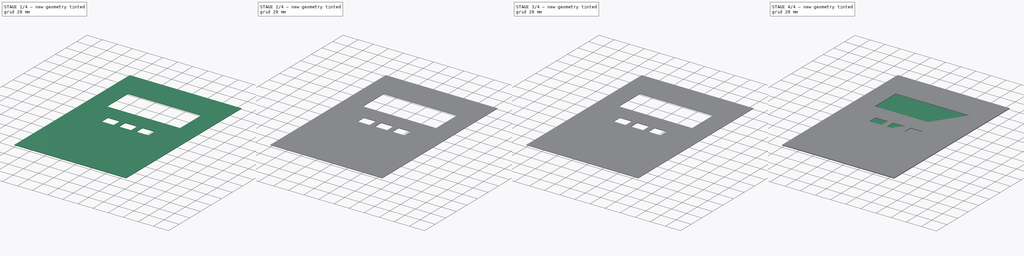
[diagram: build sequence overview — one tinted view per stage of 4, left to right]
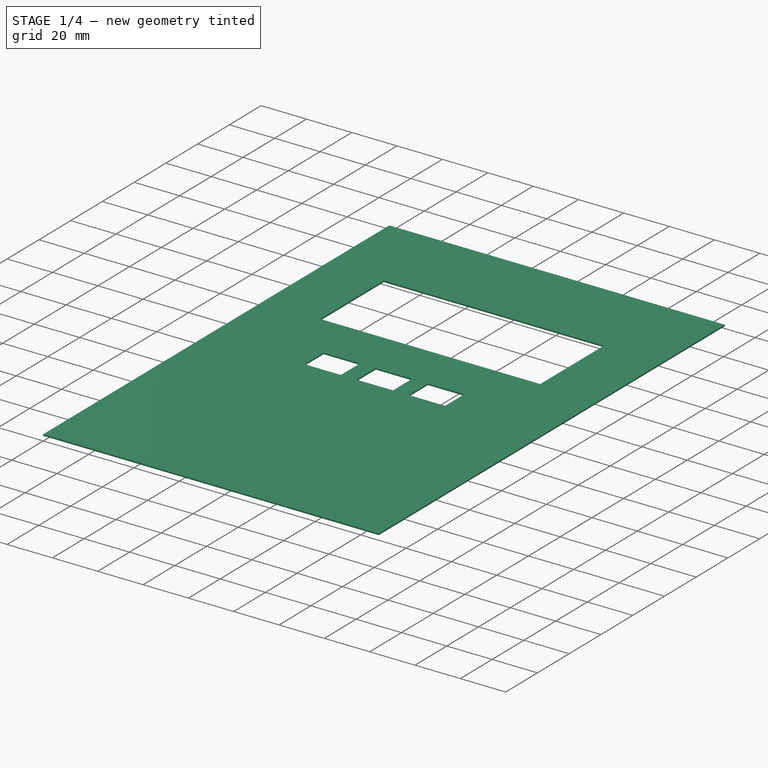
[diagram: stage 1 of 4 — iso view after this stage's code; geometry added in this stage tinted green]
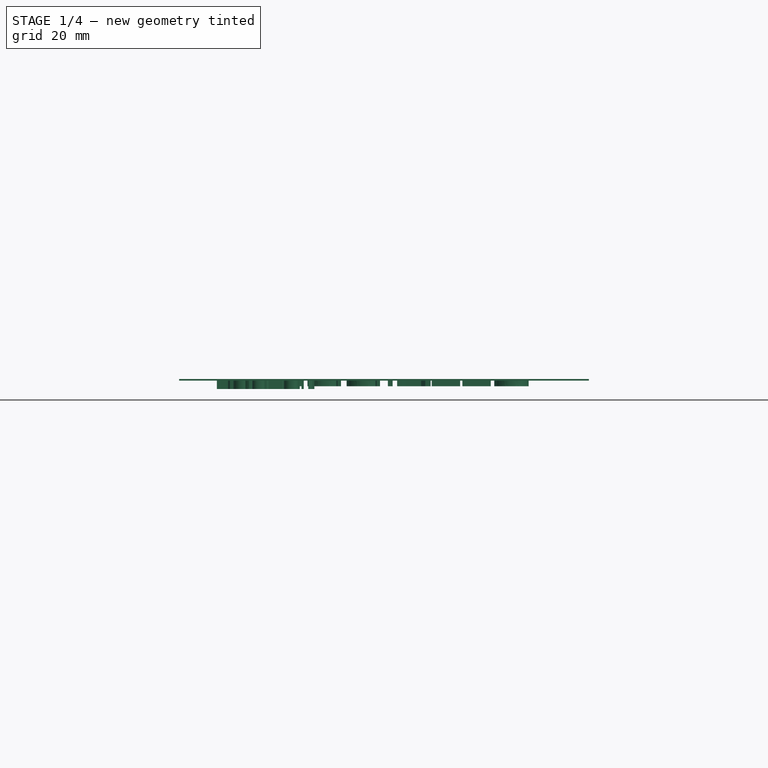
[diagram: stage 1 of 4 — front view after this stage's code; geometry added in this stage tinted green]
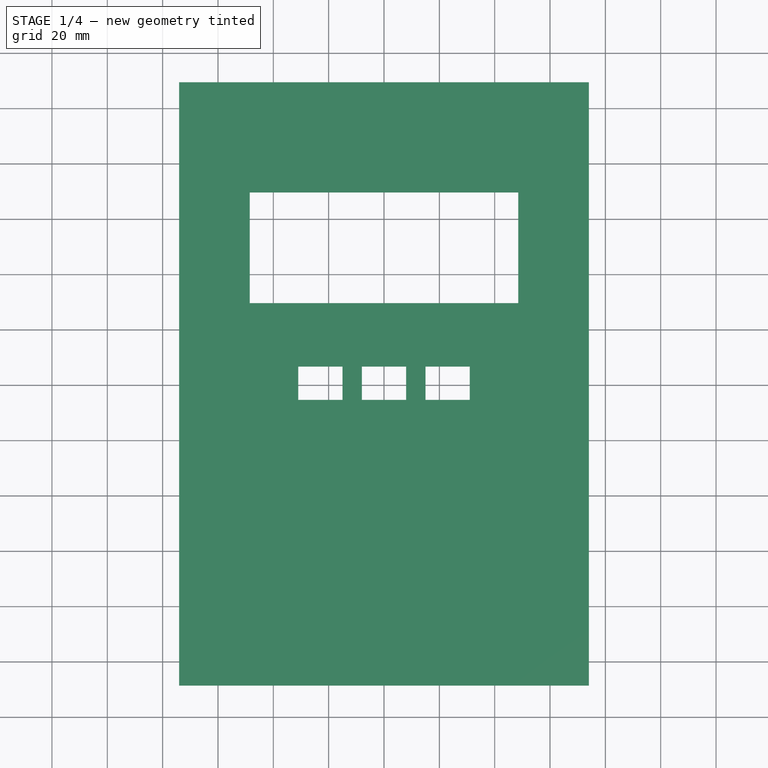
[diagram: stage 1 of 4 — top view after this stage's code; geometry added in this stage tinted green]
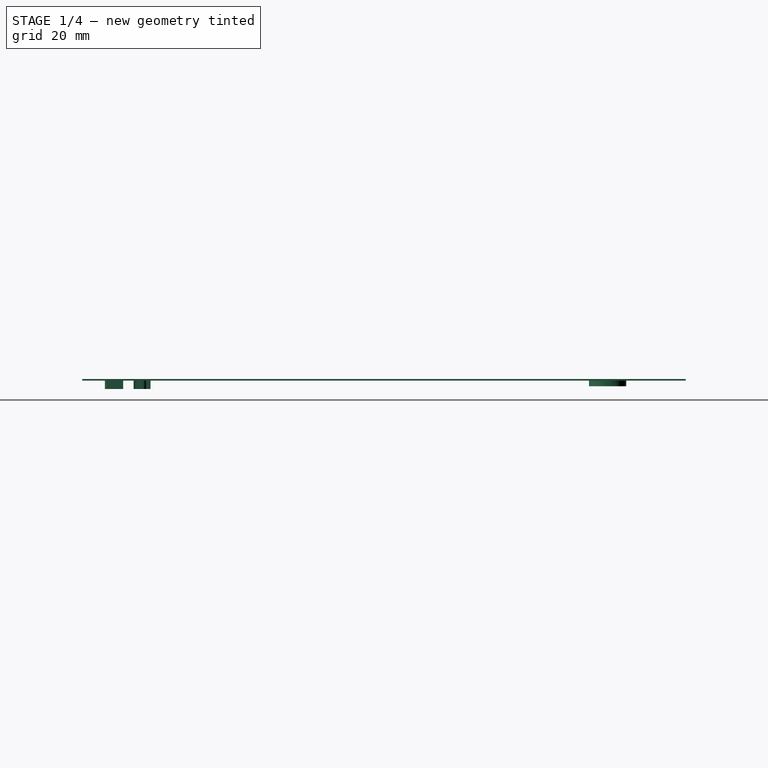
[diagram: stage 1 of 4 — right view after this stage's code; geometry added in this stage tinted green]
FCSTD DOCUMENT  (FreeCAD 1.0R39285 (Git))
Label: mascara contr pisc
License: All rights reserved
LicenseURL: https://en.wikipedia.org/wiki/All_rights_reserved
objects: PartDesign::Pad×13, Part::Part2DObjectPython×10, Sketcher::SketchObject×3, PartDesign::Body×2, Part::Box×1, PartDesign::ShapeBinder×1
note: 59 computed .brp shape members not serialized (recipe doc carries the construction recipe); baked Part::Feature solids carry a one-line shape summary decoded from their .brp

FEATURE [Part::Part2DObjectPython] ShapeString  # Draft 2D object (typed FeaturePython)
  FontFile = <userpath>/Windows11-21H2-Fonts/micross.ttf
  Fuse = false
  Justification = 6
  JustificationReference = 0
  KeepLeftMargin = false
  MakeFace = true
  ObliqueAngle = 0
  Placement = pos=(-52.19,74.71,0) rot=(0,0,1;0rad)
  ScaleToSize = true
  Size = 13
  String = FOGGIATTO
  Tracking = 0
FEATURE [Part::Part2DObjectPython] ShapeString001  # Draft 2D object (typed FeaturePython)
  FontFile = <userpath>/Windows11-21H2-Fonts/arial.ttf
  Fuse = false
  Justification = 6
  JustificationReference = 0
  KeepLeftMargin = false
  MakeFace = true
  ObliqueAngle = 0
  Placement = pos=(-56.02,-90,0) rot=(0,0,1;0rad)
  ScaleToSize = true
  Size = 6
  String = Bomba
  Tracking = 0
FEATURE [Part::Part2DObjectPython] ShapeString002  # Draft 2D object (typed FeaturePython)
  FontFile = <userpath>/Windows11-21H2-Fonts/arial.ttf
  Fuse = false
  Justification = 6
  JustificationReference = 0
  KeepLeftMargin = false
  MakeFace = true
  ObliqueAngle = 0
  Placement = pos=(-60.38,-100,0) rot=(0,0,1;0rad)
  ScaleToSize = true
  Size = 6
  String = AQUEC.1
  Tracking = 0
FEATURE [Part::Part2DObjectPython] ShapeString003  # Draft 2D object (typed FeaturePython)
  FontFile = <userpath>/Windows11-21H2-Fonts/arial.ttf
  Fuse = false
  Justification = 6
  JustificationReference = 0
  KeepLeftMargin = false
  MakeFace = true
  ObliqueAngle = 0
  Placement = pos=(-9.02,-90,0) rot=(0,0,1;0rad)
  ScaleToSize = true
  Size = 6
  String = Bomba
  Tracking = 0
FEATURE [Part::Part2DObjectPython] ShapeString004  # Draft 2D object (typed FeaturePython)
  FontFile = <userpath>/Windows11-21H2-Fonts/arial.ttf
  Fuse = false
  Justification = 6
  JustificationReference = 0
  KeepLeftMargin = false
  MakeFace = true
  ObliqueAngle = 0
  Placement = pos=(31.02,-90,0) rot=(0,0,1;0rad)
  ScaleToSize = true
  Size = 6
  String = Bomba
  Tracking = 0
FEATURE [Part::Part2DObjectPython] ShapeString005  # Draft 2D object (typed FeaturePython)
  FontFile = <userpath>/Windows11-21H2-Fonts/arial.ttf
  Fuse = false
  Justification = 6
  JustificationReference = 0
  KeepLeftMargin = false
  MakeFace = true
  ObliqueAngle = 0
  Placement = pos=(-15.38,-100,0) rot=(0,0,1;0rad)
  ScaleToSize = true
  Size = 6
  String = AQUEC.2
  Tracking = 0
FEATURE [Part::Part2DObjectPython] ShapeString006  # Draft 2D object (typed FeaturePython)
  FontFile = <userpath>/Windows11-21H2-Fonts/arial.ttf
  Fuse = false
  Justification = 6
  JustificationReference = 0
  KeepLeftMargin = false
  MakeFace = true
  ObliqueAngle = 0
  Placement = pos=(30.62,-100,0) rot=(0,0,1;0rad)
  ScaleToSize = true
  Size = 6
  String = FILTRO
  Tracking = 0
FEATURE [Part::Part2DObjectPython] ShapeString007  # Draft 2D object (typed FeaturePython)
  FontFile = <userpath>/Windows11-21H2-Fonts/ariali.ttf
  Fuse = false
  Justification = 6
  JustificationReference = 0
  KeepLeftMargin = false
  MakeFace = true
  ObliqueAngle = 0
  Placement = pos=(53.07,74.7,0) rot=(0,0,1;0rad)
  ScaleToSize = true
  Size = 4
  String = CP01
  Tracking = 0
FEATURE [Sketcher::SketchObject] Sketch001
  ArcFitTolerance = 1e-06
  AttachmentSupport = -> [XY_Plane001]
  FullyConstrained = false
  MakeInternals = false
  MapMode = 5
  sketch-geometry (20):
    g0: LineSegment StartX=-74.0446 StartY=109.432 StartZ=0 EndX=-74.0446 EndY=-108.66 EndZ=0
    g1: LineSegment StartX=-74.0446 StartY=-108.66 StartZ=0 EndX=74.0446 EndY=-108.66 EndZ=0
    g2: LineSegment StartX=74.0446 StartY=-108.66 StartZ=0 EndX=74.0446 EndY=109.432 EndZ=0
    g3: LineSegment StartX=74.0446 StartY=109.432 StartZ=0 EndX=-74.0446 EndY=109.432 EndZ=0
    g4: LineSegment StartX=-48.5 StartY=69.5809 StartZ=0 EndX=-48.5 EndY=29.5809 EndZ=0
    g5: LineSegment StartX=-48.5 StartY=29.5809 StartZ=0 EndX=48.5 EndY=29.5809 EndZ=0
    g6: LineSegment StartX=48.5 StartY=29.5809 StartZ=0 EndX=48.5 EndY=69.5809 EndZ=0
    g7: LineSegment StartX=48.5 StartY=69.5809 StartZ=0 EndX=-48.5 EndY=69.5809 EndZ=0
    g8: LineSegment StartX=-31 StartY=6.63501 StartZ=0 EndX=-31 EndY=-5.36499 EndZ=0
    g9: LineSegment StartX=-31 StartY=-5.36499 StartZ=0 EndX=-15 EndY=-5.36499 EndZ=0
    g10: LineSegment StartX=-15 StartY=-5.36499 StartZ=0 EndX=-15 EndY=6.63501 EndZ=0
    g11: LineSegment StartX=-15 StartY=6.63501 StartZ=0 EndX=-31 EndY=6.63501 EndZ=0
    g12: LineSegment StartX=-8 StartY=6.63501 StartZ=0 EndX=-8 EndY=-5.36499 EndZ=0
    g13: LineSegment StartX=-8 StartY=-5.36499 StartZ=0 EndX=8 EndY=-5.36499 EndZ=0
    g14: LineSegment StartX=8 StartY=-5.36499 StartZ=0 EndX=8 EndY=6.63501 EndZ=0
    g15: LineSegment StartX=8 StartY=6.63501 StartZ=0 EndX=-8 EndY=6.63501 EndZ=0
    g16: LineSegment StartX=15 StartY=6.63501 StartZ=0 EndX=15 EndY=-5.36499 EndZ=0
    g17: LineSegment StartX=15 StartY=-5.36499 StartZ=0 EndX=31 EndY=-5.36499 EndZ=0
    g18: LineSegment StartX=31 StartY=-5.36499 StartZ=0 EndX=31 EndY=6.63501 EndZ=0
    g19: LineSegment StartX=31 StartY=6.63501 StartZ=0 EndX=15 EndY=6.63501 EndZ=0
  constraints (51):
    c: Coincident(g0,g1)
    c: Coincident(g1,g2)
    c: Coincident(g2,g3)
    c: Coincident(g3,g0)
    c: Vertical(g0)
    c: Vertical(g2)
    c: Horizontal(g1)
    c: Coincident(g4,g5)
    c: Coincident(g5,g6)
    c: Coincident(g6,g7)
    c: Coincident(g7,g4)
    c: Vertical(g4)
    c: Vertical(g6)
    c: Horizontal(g7)
    c: Coincident(g8,g9)
    c: Coincident(g9,g10)
    c: Coincident(g10,g11)
    c: Coincident(g11,g8)
    c: Vertical(g8)
    c: Vertical(g10)
    c: Horizontal(g9)
    c: Horizontal(g11)
    c: Coincident(g12,g13)
    c: Coincident(g13,g14)
    c: Coincident(g14,g15)
    c: Coincident(g15,g12)
    c: Vertical(g12)
    c: Vertical(g14)
    c: Horizontal(g13)
    c: Coincident(g16,g17)
    c: Coincident(g17,g18)
    c: Coincident(g18,g19)
    c: Coincident(g19,g16)
    c: Vertical(g16)
    c: Vertical(g18)
    c: Horizontal(g17)
    c: Horizontal(g19)
    c: Equal(g15,g11)
    c: Equal(g11,g19)
    c: Equal(g14,g18)
    c: Equal(g18,g10)
    c: Symmetric(g14,g12,g-2)
    c: Symmetric(g16,g10,g-2)
    c: DistanceY(g16,g14) = 0
    c: DistanceX(g14,g16) = 7
    c: DistanceX(g19,g19) = 16
    c: DistanceY(g18,g18) = 12
    c: DistanceY(g4,g4) = 40
    c: DistanceX(g5,g5) = 97
    c: Symmetric(g5,g4,g-2)
    c: Symmetric(g0,g2,g-2)
FEATURE [PartDesign::Pad] Pad001
  Direction = (0,0,1)
  Length = 0.6
  Length2 = 10
  Profile = -> Sketch001
  ReferenceAxis = -> Sketch001 [N_Axis]
  Refine = true
  Suppressed = false
  Type = 0
FEATURE [PartDesign::Pad] Pad002
  BaseFeature = -> Pad001
  Direction = (0,0,1)
  Length = 2
  Length2 = 10
  Profile = -> ShapeString
  ReferenceAxis = -> ShapeString [N_Axis]
  Refine = true
  Reversed = true
  Suppressed = false
  Type = 0
FEATURE [PartDesign::Pad] Pad003
  BaseFeature = -> Pad002
  Direction = (0,0,1)
  Length = 3
  Length2 = 10
  Profile = -> ShapeString001
  ReferenceAxis = -> ShapeString001 [N_Axis]
  Refine = true
  Reversed = true
  Suppressed = false
  Type = 0
FEATURE [PartDesign::Pad] Pad004
  BaseFeature = -> Pad003
  Direction = (0,0,1)
  Length = 3
  Length2 = 10
  Profile = -> ShapeString002
  ReferenceAxis = -> ShapeString002 [N_Axis]
  Refine = true
  Reversed = true
  Suppressed = false
  Type = 0
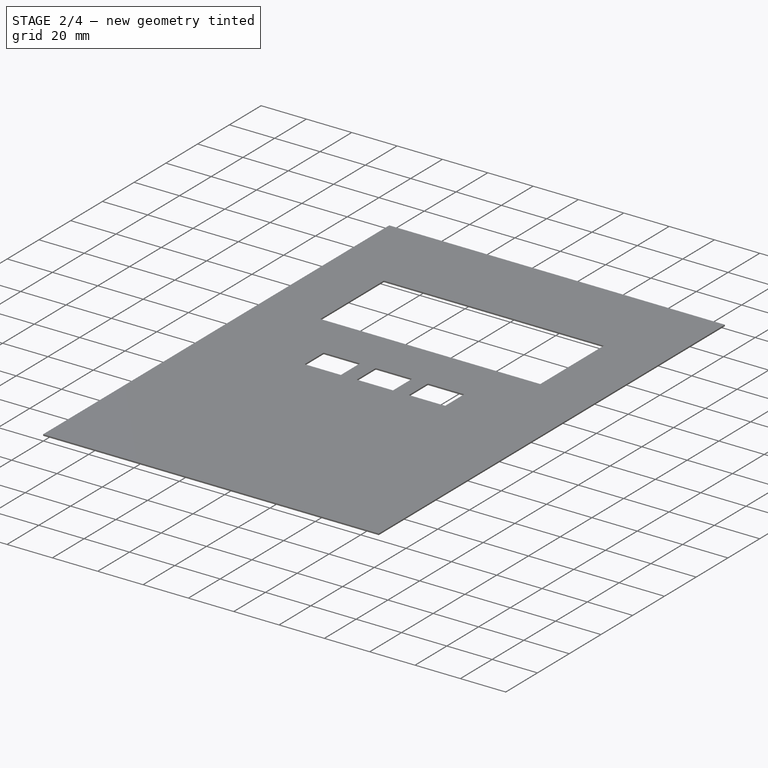
[diagram: stage 2 of 4 — iso view after this stage's code; geometry added in this stage tinted green]
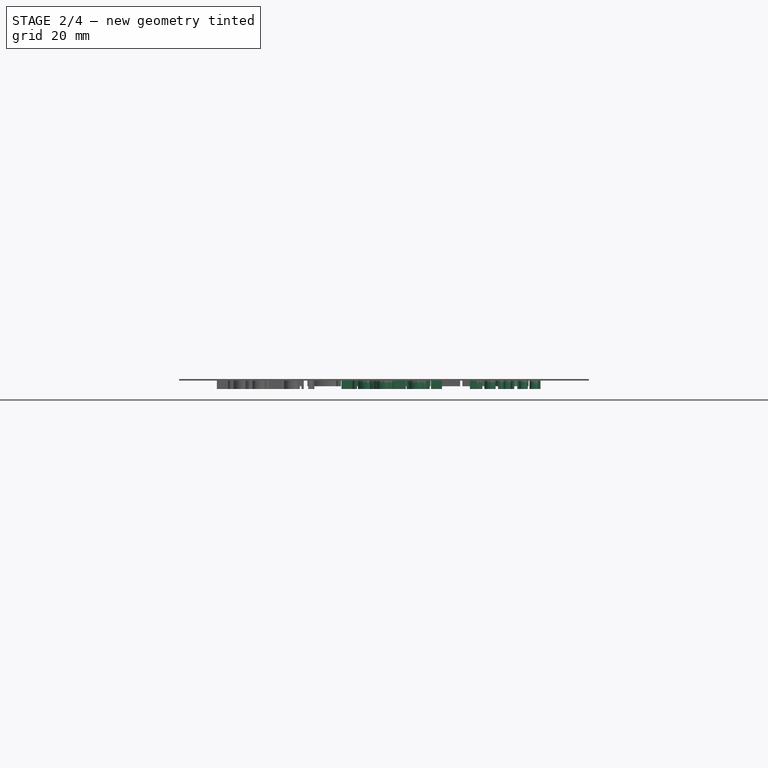
[diagram: stage 2 of 4 — front view after this stage's code; geometry added in this stage tinted green]
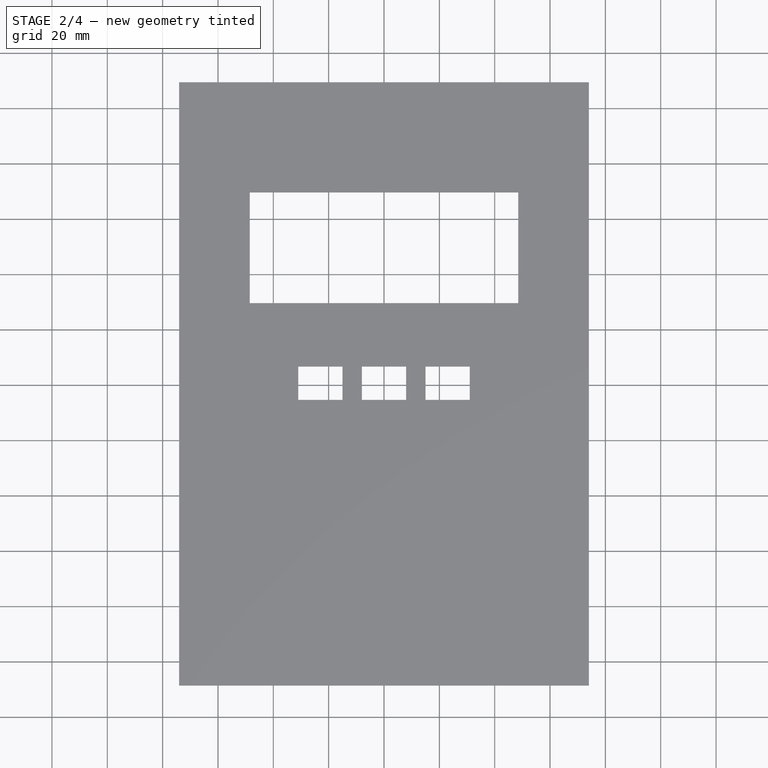
[diagram: stage 2 of 4 — top view after this stage's code; geometry added in this stage tinted green]
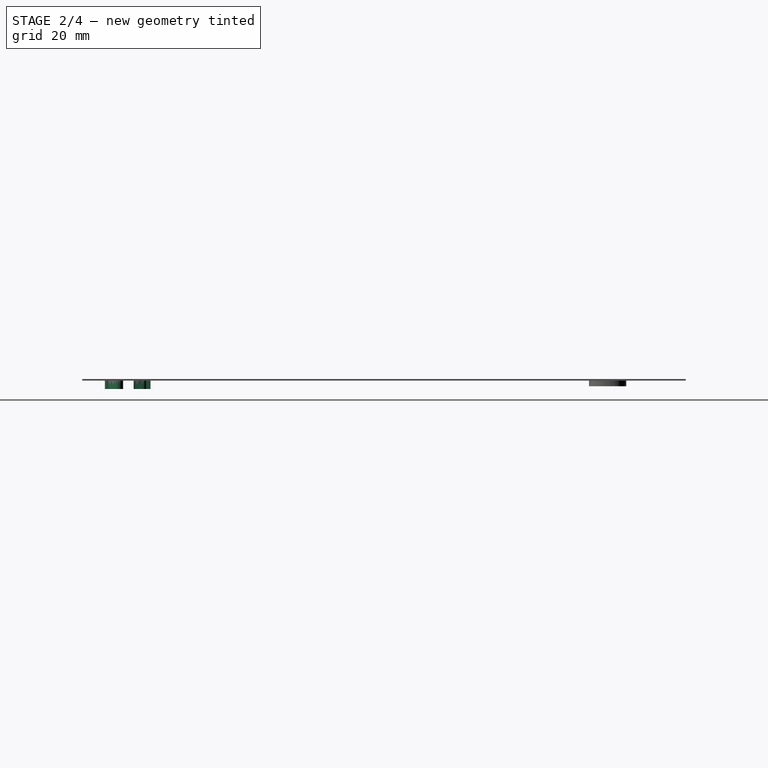
[diagram: stage 2 of 4 — right view after this stage's code; geometry added in this stage tinted green]
FEATURE [PartDesign::Pad] Pad005
  BaseFeature = -> Pad004
  Direction = (0,0,1)
  Length = 3
  Length2 = 10
  Profile = -> ShapeString003
  ReferenceAxis = -> ShapeString003 [N_Axis]
  Refine = true
  Reversed = true
  Suppressed = false
  Type = 0
FEATURE [PartDesign::Pad] Pad006
  BaseFeature = -> Pad005
  Direction = (0,0,1)
  Length = 3
  Length2 = 10
  Profile = -> ShapeString004
  ReferenceAxis = -> ShapeString004 [N_Axis]
  Refine = true
  Reversed = true
  Suppressed = false
  Type = 0
FEATURE [PartDesign::Pad] Pad007
  BaseFeature = -> Pad006
  Direction = (0,0,1)
  Length = 3
  Length2 = 10
  Profile = -> ShapeString005
  ReferenceAxis = -> ShapeString005 [N_Axis]
  Refine = true
  Reversed = true
  Suppressed = false
  Type = 0
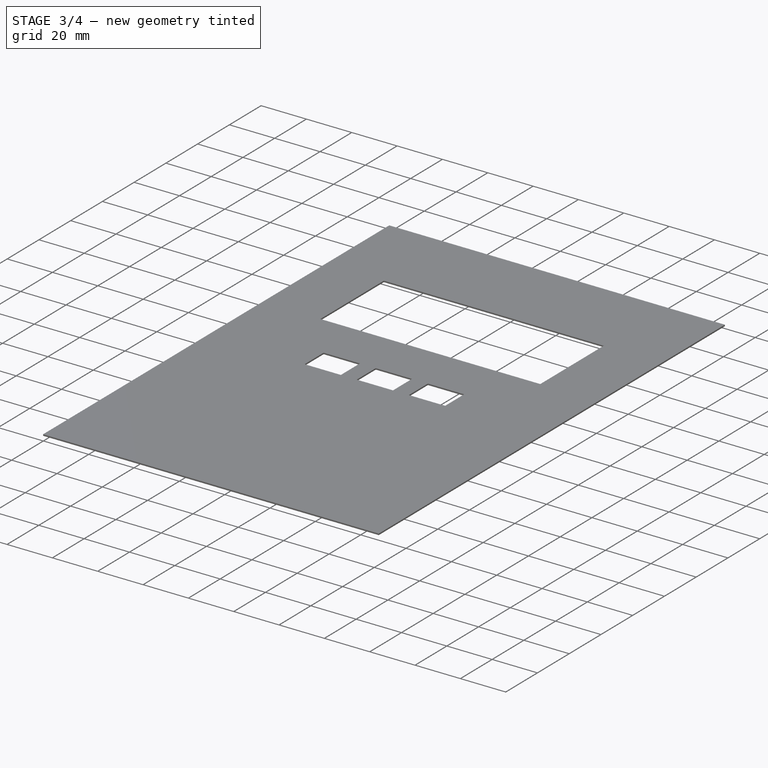
[diagram: stage 3 of 4 — iso view after this stage's code; geometry added in this stage tinted green]
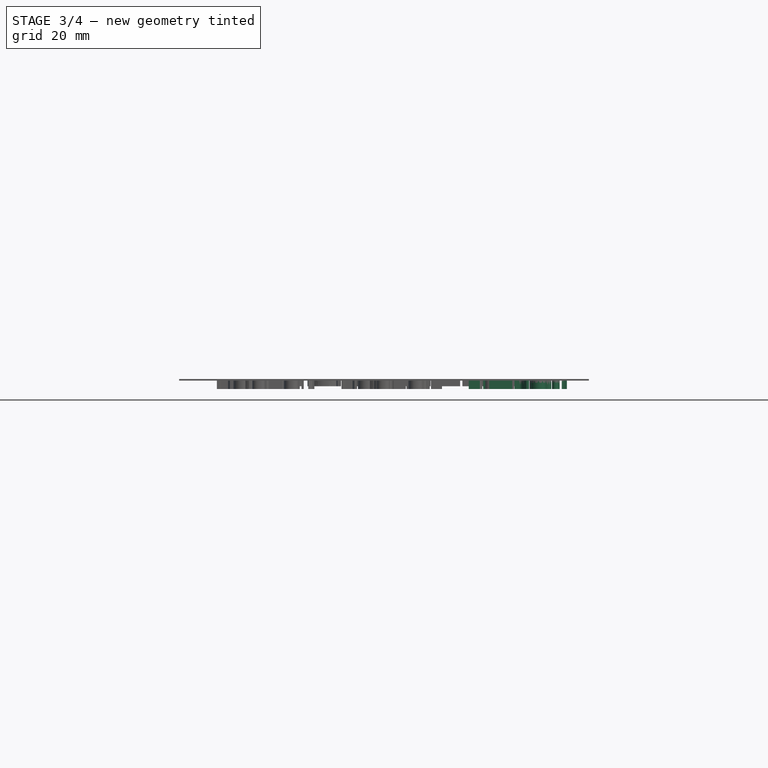
[diagram: stage 3 of 4 — front view after this stage's code; geometry added in this stage tinted green]
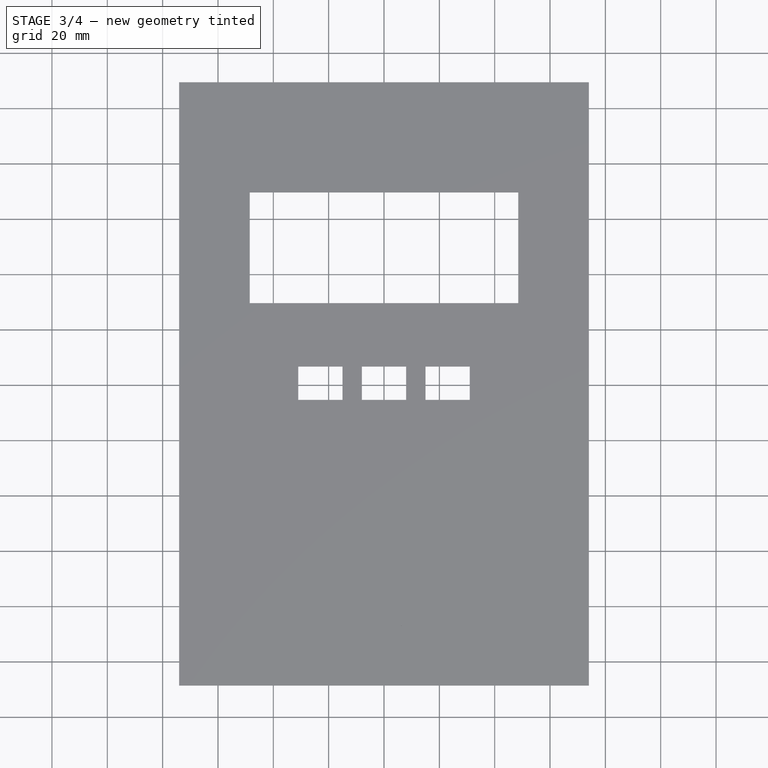
[diagram: stage 3 of 4 — top view after this stage's code; geometry added in this stage tinted green]
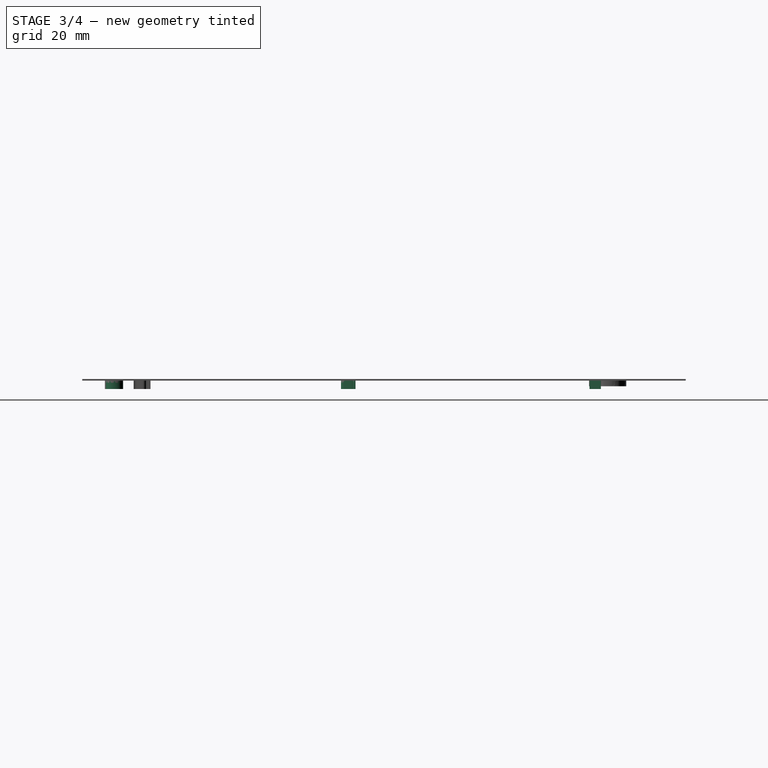
[diagram: stage 3 of 4 — right view after this stage's code; geometry added in this stage tinted green]
FEATURE [PartDesign::Pad] Pad008
  BaseFeature = -> Pad007
  Direction = (0,0,1)
  Length = 3
  Length2 = 10
  Profile = -> ShapeString006
  ReferenceAxis = -> ShapeString006 [N_Axis]
  Refine = true
  Reversed = true
  Suppressed = false
  Type = 0
FEATURE [PartDesign::Pad] Pad009
  BaseFeature = -> Pad008
  Direction = (0,0,1)
  Length = 3
  Length2 = 10
  Profile = -> ShapeString007
  ReferenceAxis = -> ShapeString007 [N_Axis]
  Refine = true
  Reversed = true
  Suppressed = false
  Type = 0
FEATURE [Part::Part2DObjectPython] ShapeString008  # Draft 2D object (typed FeaturePython)
  FontFile = <userpath>/Windows11-21H2-Fonts/ariali.ttf
  Fuse = false
  Justification = 6
  JustificationReference = 0
  KeepLeftMargin = false
  MakeFace = true
  ObliqueAngle = 0
  Placement = pos=(-8,-14,0) rot=(0,0,1;0rad)
  ScaleToSize = true
  Size = 4
  String = Config
  Tracking = 0
FEATURE [Part::Part2DObjectPython] ShapeString009  # Draft 2D object (typed FeaturePython)
  FontFile = <userpath>/Windows11-21H2-Fonts/ariali.ttf
  Fuse = false
  Justification = 6
  JustificationReference = 0
  KeepLeftMargin = false
  MakeFace = true
  ObliqueAngle = 0
  Placement = pos=(17,-14,0) rot=(0,0,1;0rad)
  ScaleToSize = true
  Size = 4
  String = Timer
  Tracking = 0
FEATURE [PartDesign::Pad] Pad010
  BaseFeature = -> Pad009
  Direction = (0,0,1)
  Length = 3
  Length2 = 10
  Profile = -> ShapeString008
  ReferenceAxis = -> ShapeString008 [N_Axis]
  Refine = true
  Reversed = true
  Suppressed = false
  Type = 0
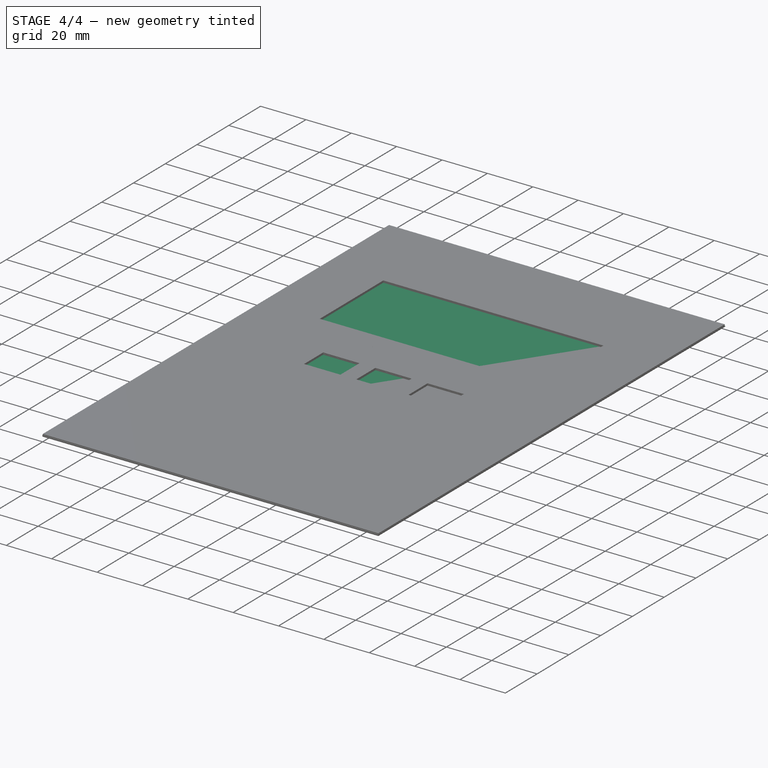
[diagram: stage 4 of 4 — iso view after this stage's code; geometry added in this stage tinted green]
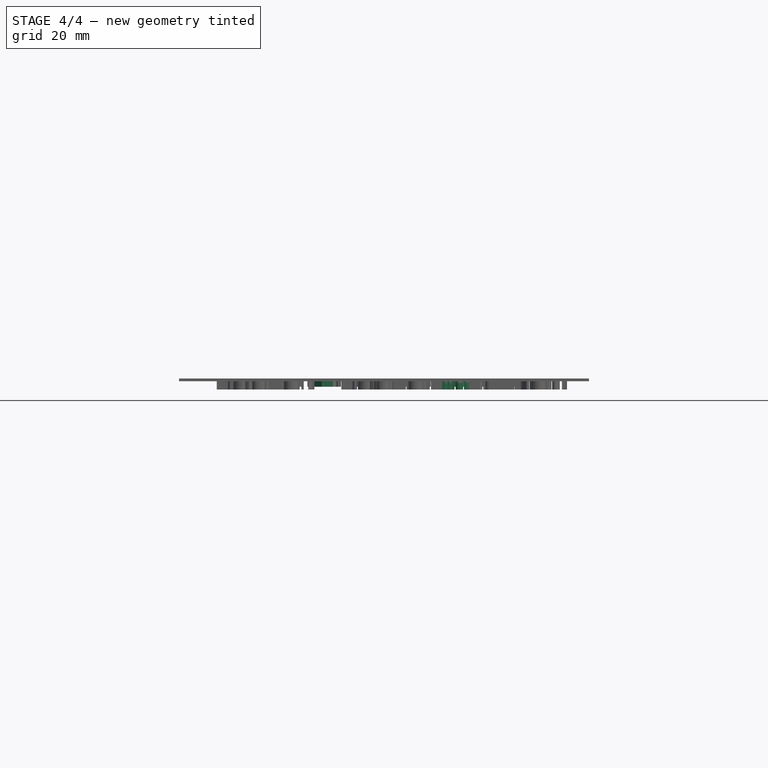
[diagram: stage 4 of 4 — front view after this stage's code; geometry added in this stage tinted green]
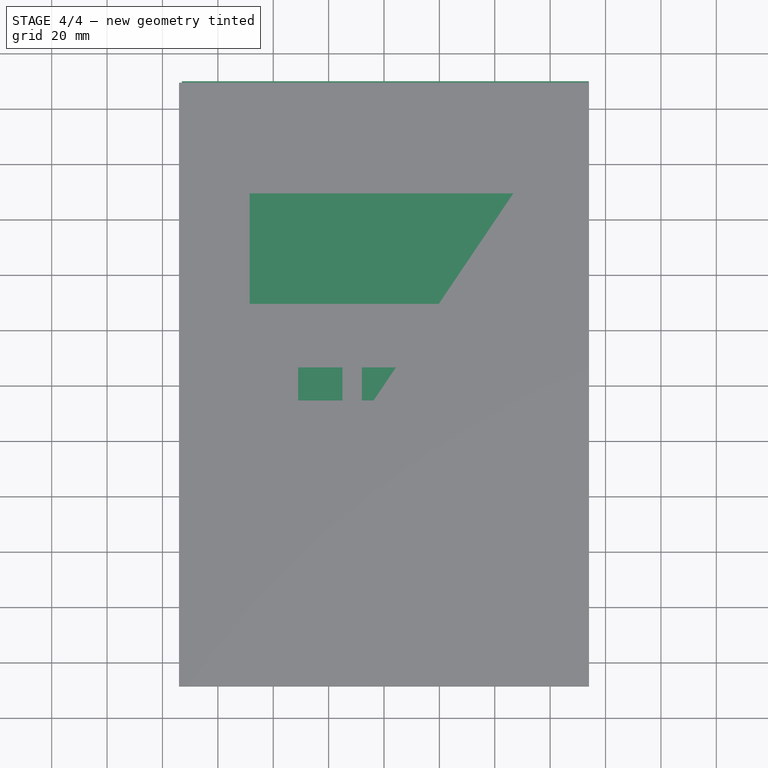
[diagram: stage 4 of 4 — top view after this stage's code; geometry added in this stage tinted green]
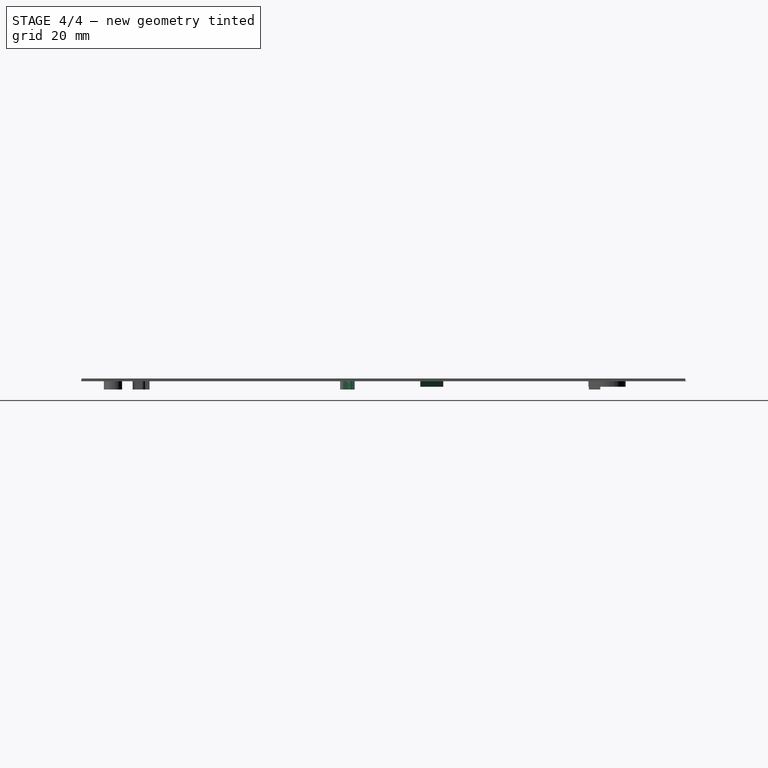
[diagram: stage 4 of 4 — right view after this stage's code; geometry added in this stage tinted green]
FEATURE [Sketcher::SketchObject] Sketch
  ArcFitTolerance = 1e-06
  AttachmentSupport = -> [XY_Plane]
  FullyConstrained = false
  MakeInternals = false
  MapMode = 5
  sketch-geometry (20):
    g0: LineSegment StartX=-74 StartY=109.5 StartZ=0 EndX=-74 EndY=-108.5 EndZ=0
    g1: LineSegment StartX=-74 StartY=-108.5 StartZ=0 EndX=74 EndY=-108.5 EndZ=0
    g2: LineSegment StartX=74 StartY=-108.5 StartZ=0 EndX=74 EndY=109.5 EndZ=0
    g3: LineSegment StartX=74 StartY=109.5 StartZ=0 EndX=-74 EndY=109.5 EndZ=0
    g4: LineSegment StartX=-48.5 StartY=69.4996 StartZ=0 EndX=-48.5 EndY=29.4996 EndZ=0
    g5: LineSegment StartX=-48.5 StartY=29.4996 StartZ=0 EndX=48.5 EndY=29.4996 EndZ=0
    g6: LineSegment StartX=48.5 StartY=29.4996 StartZ=0 EndX=48.5 EndY=69.4996 EndZ=0
    g7: LineSegment StartX=48.5 StartY=69.4996 StartZ=0 EndX=-48.5 EndY=69.4996 EndZ=0
    g8: LineSegment StartX=15 StartY=6.66152 StartZ=0 EndX=15 EndY=-5.33848 EndZ=0
    g9: LineSegment StartX=15 StartY=-5.33848 StartZ=0 EndX=31 EndY=-5.33848 EndZ=0
    g10: LineSegment StartX=31 StartY=-5.33848 StartZ=0 EndX=31 EndY=6.66152 EndZ=0
    g11: LineSegment StartX=31 StartY=6.66152 StartZ=0 EndX=15 EndY=6.66152 EndZ=0
    g12: LineSegment StartX=-31 StartY=6.66152 StartZ=0 EndX=-31 EndY=-5.33848 EndZ=0
    g13: LineSegment StartX=-31 StartY=-5.33848 StartZ=0 EndX=-15 EndY=-5.33848 EndZ=0
    g14: LineSegment StartX=-15 StartY=-5.33848 StartZ=0 EndX=-15 EndY=6.66152 EndZ=0
    g15: LineSegment StartX=-15 StartY=6.66152 StartZ=0 EndX=-31 EndY=6.66152 EndZ=0
    g16: LineSegment StartX=-8 StartY=6.66152 StartZ=0 EndX=-8 EndY=-5.33848 EndZ=0
    g17: LineSegment StartX=-8 StartY=-5.33848 StartZ=0 EndX=8 EndY=-5.33848 EndZ=0
    g18: LineSegment StartX=8 StartY=-5.33848 StartZ=0 EndX=8 EndY=6.66152 EndZ=0
    g19: LineSegment StartX=8 StartY=6.66152 StartZ=0 EndX=-8 EndY=6.66152 EndZ=0
  constraints (54):
    c: Coincident(g0,g1)
    c: Coincident(g1,g2)
    c: Coincident(g2,g3)
    c: Coincident(g3,g0)
    c: Vertical(g0)
    c: Vertical(g2)
    c: Horizontal(g1)
    c: DistanceY(g0,g0) = 218
    c: DistanceX(g3,g3) = 148
    c: Symmetric(g0,g2,g-2)
    c: Coincident(g4,g5)
    c: Coincident(g5,g6)
    c: Coincident(g6,g7)
    c: Coincident(g7,g4)
    c: Vertical(g4)
    c: Vertical(g6)
    c: Horizontal(g5)
    c: DistanceY(g6,g6) = 40
    c: DistanceX(g7,g7) = 97
    c: Symmetric(g6,g4,g-2)
    c: Coincident(g8,g9)
    c: Coincident(g9,g10)
    c: Coincident(g10,g11)
    c: Coincident(g11,g8)
    c: Vertical(g8)
    c: Vertical(g10)
    c: Horizontal(g9)
    c: Horizontal(g11)
    c: Coincident(g12,g13)
    c: Coincident(g13,g14)
    c: Coincident(g14,g15)
    c: Coincident(g15,g12)
    c: Vertical(g12)
    c: Vertical(g14)
    c: Horizontal(g13)
    c: Horizontal(g15)
    c: Coincident(g16,g17)
    c: Coincident(g17,g18)
    c: Coincident(g18,g19)
    c: Coincident(g19,g16)
    c: Vertical(g16)
    c: Vertical(g18)
    c: Horizontal(g17)
    c: DistanceX(g15,g15) = 16
    c: Distance(g12,g12) = 12
    c: Equal(g16,g14)
    c: Equal(g14,g8)
    c: Equal(g17,g13)
    c: Equal(g13,g9)
    c: Symmetric(g18,g16,g-2)
    c: Symmetric(g8,g14,g-2)
    c: DistanceX(g18,g8) = 7
    c: DistanceY(g14,g16) = 0
    c: DistanceY(g6,g2) = 40
FEATURE [PartDesign::Pad] Pad
  Direction = (0,0,1)
  Length = 1
  Length2 = 10
  Profile = -> Sketch
  ReferenceAxis = -> Sketch [N_Axis]
  Refine = true
  Suppressed = false
  Type = 0
FEATURE [PartDesign::Body] Body  label="Corpo"
  AllowCompound = false
  Group = -> [Sketch,Pad]
  Origin = -> Origin
  Tip = -> Pad
FEATURE [Part::Box] Box  label="Cubo"
  AttacherType = Attacher::AttachEngine3D
  Height = 0.1
  Length = 147
  Placement = pos=(-73,-108,0) rot=(0,0,1;0rad)
  Width = 218
FEATURE [PartDesign::Pad] Pad011
  BaseFeature = -> Pad010
  Direction = (0,0,1)
  Length = 3
  Length2 = 10
  Profile = -> ShapeString009
  ReferenceAxis = -> ShapeString009 [N_Axis]
  Refine = true
  Reversed = true
  Suppressed = false
  Type = 0
FEATURE [PartDesign::ShapeBinder] ReferencePad
  Placement = pos=(0,0,1) rot=(0,0,1;0rad)
  Support = -> [Pad]
  TraceSupport = false
FEATURE [Sketcher::SketchObject] Sketch002
  ArcFitTolerance = 1e-06
  AttachmentSupport = -> [ReferencePad]
  FullyConstrained = false
  MakeInternals = false
  MapMode = 5
  Placement = pos=(0,0,1) rot=(0,0,1;0rad)
  sketch-geometry (10):
    g0: LineSegment StartX=4 StartY=21.9758 StartZ=0 EndX=-4 EndY=21.9758 EndZ=0
    g1: LineSegment StartX=-4 StartY=21.9758 StartZ=0 EndX=-4 EndY=13.9758 EndZ=0
    g2: LineSegment StartX=-4 StartY=13.9758 StartZ=0 EndX=4 EndY=13.9758 EndZ=0
    g3: LineSegment StartX=4 StartY=13.9758 StartZ=0 EndX=4 EndY=21.9758 EndZ=0
    g4: LineSegment StartX=23.2139 StartY=22.0846 StartZ=0 EndX=19.2139 EndY=13.9127 EndZ=0
    g5: LineSegment StartX=19.2139 StartY=13.9127 StartZ=0 EndX=27.2139 EndY=13.9127 EndZ=0
    g6: LineSegment StartX=27.2139 StartY=13.9127 StartZ=0 EndX=23.2139 EndY=22.0846 EndZ=0
    g7: LineSegment StartX=-26.4825 StartY=21.9127 StartZ=0 EndX=-18.4825 EndY=21.9127 EndZ=0
    g8: LineSegment StartX=-18.4825 StartY=21.9127 StartZ=0 EndX=-22.4825 EndY=13.7407 EndZ=0
    g9: LineSegment StartX=-22.4825 StartY=13.7407 StartZ=0 EndX=-26.4825 EndY=21.9127 EndZ=0
  constraints (24):
    c: Coincident(g0,g1)
    c: Coincident(g1,g2)
    c: Coincident(g2,g3)
    c: Coincident(g3,g0)
    c: Horizontal(g2)
    c: Vertical(g1)
    c: Vertical(g3)
    c: Coincident(g4,g5)
    c: Coincident(g5,g6)
    c: Coincident(g6,g4)
    c: Coincident(g7,g8)
    c: Coincident(g8,g9)
    c: Coincident(g9,g7)
    c: DistanceY(g3,g3) = 8
    c: DistanceX(g0,g0) = 8
    c: Symmetric(g0,g0,g-2)
    c: DistanceX(g5,g5) = 8
    c: Horizontal(g5)
    c: Horizontal(g7)
    c: Equal(g7,g5)
    c: DistanceY(g4,g7) = 8
    c: Equal(g4,g6)
    c: Equal(g6,g8)
    c: Equal(g8,g9)
FEATURE [PartDesign::Pad] Pad012
  BaseFeature = -> Pad011
  Direction = (0,0,1)
  Length = 3
  Length2 = 10
  Profile = -> Sketch002
  ReferenceAxis = -> Sketch002 [N_Axis]
  Refine = true
  Reversed = true
  Suppressed = false
  Type = 0
FEATURE [PartDesign::Body] Body001  label="Corpo001"
  AllowCompound = false
  Group = -> [Sketch001,Pad001,ShapeString,ShapeString001,ShapeString002,ShapeString003,ShapeString004,ShapeString005,ShapeString006,ShapeString007,Pad002,Pad003,Pad004,Pad005,Pad006,Pad007,Pad008,Pad009,ShapeString008,ShapeString009,Pad010,Pad011,ReferencePad,Sketch002,Pad012]
  Origin = -> Origin001
  Tip = -> Pad012
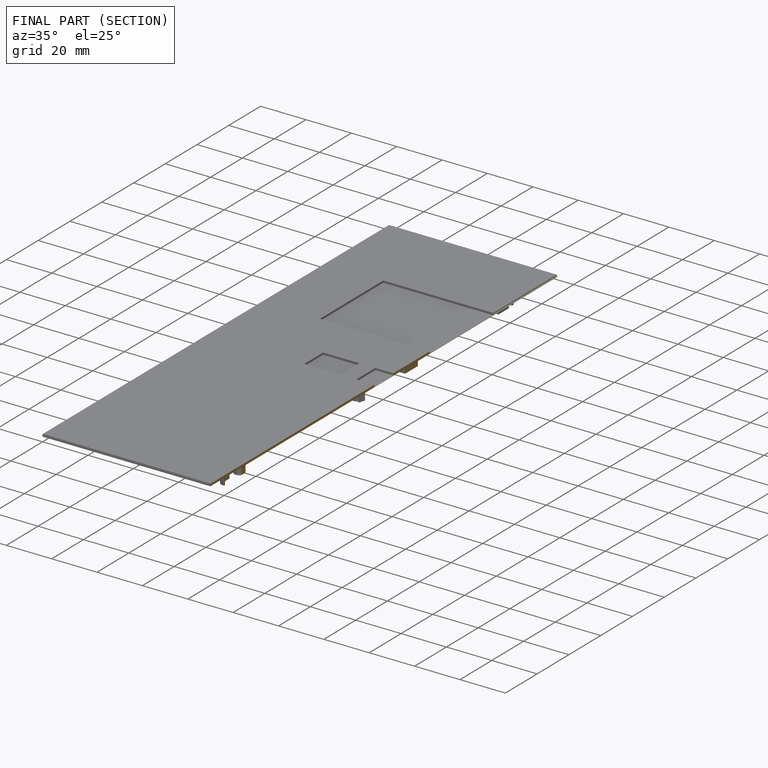
[diagram: finished part — half-section view (interior)]
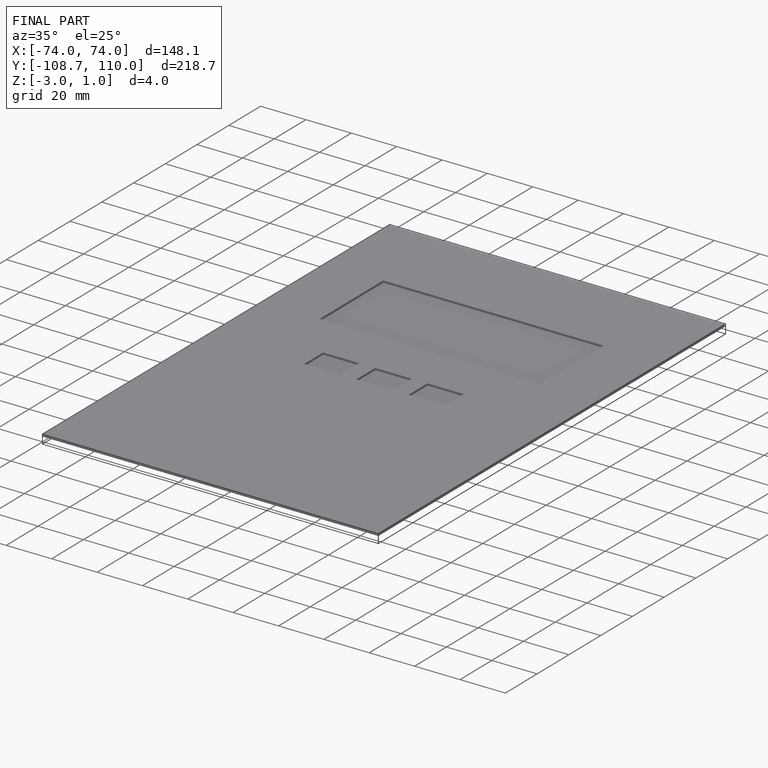
[diagram: finished part — iso view with bounding-box wireframe]
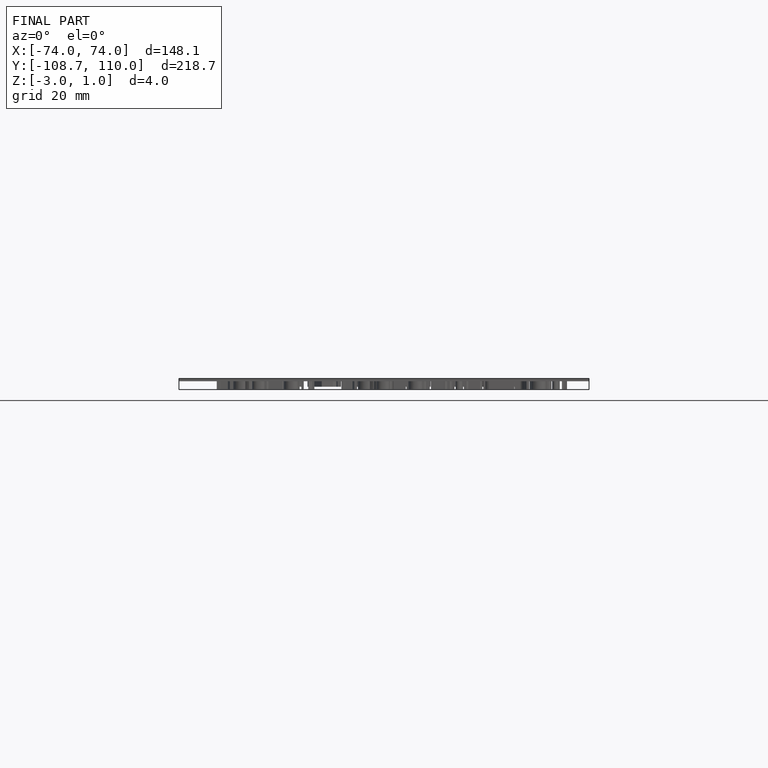
[diagram: finished part — front view with bounding-box wireframe]
